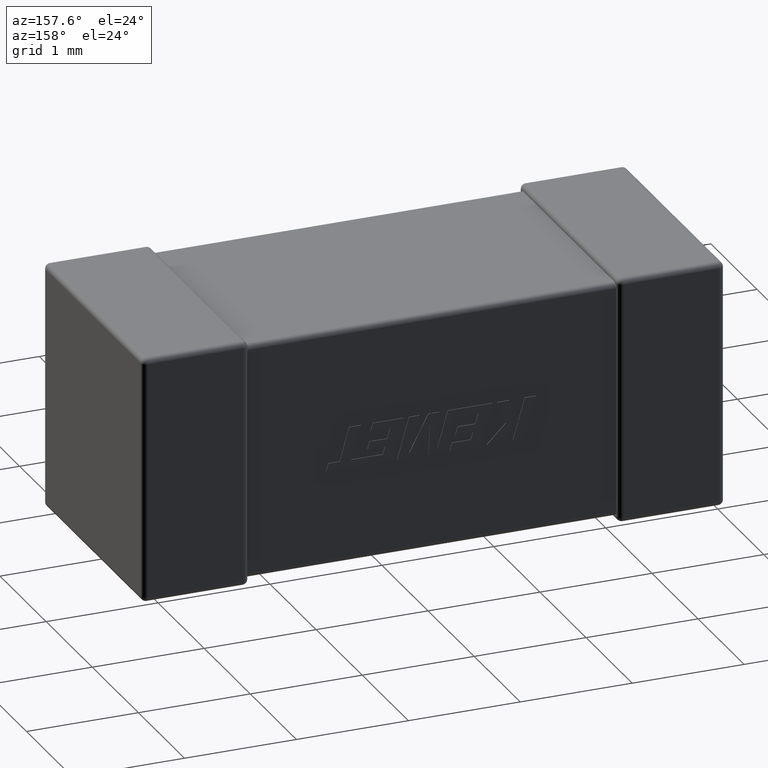
[diagram: clean part render]
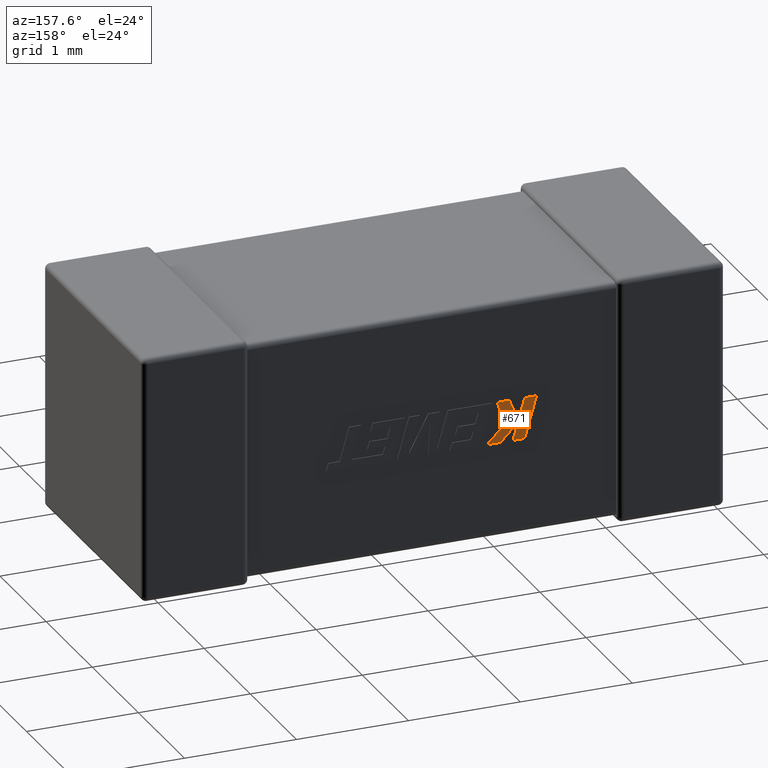
[diagram: same view with one face highlighted and labeled with its STEP entity id]
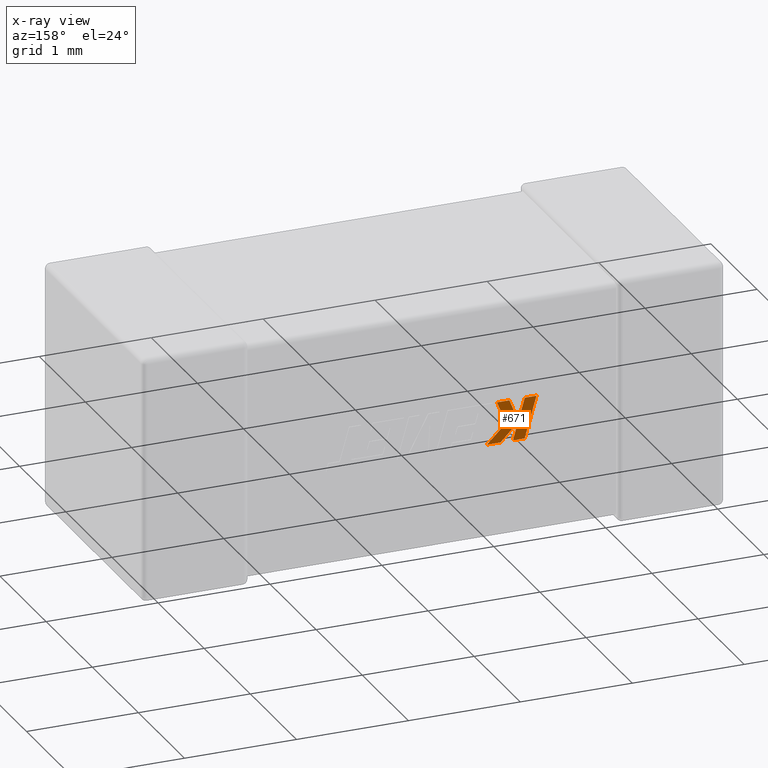
[diagram: x-ray of the same camera — body ghosted, the highlighted face saturated]
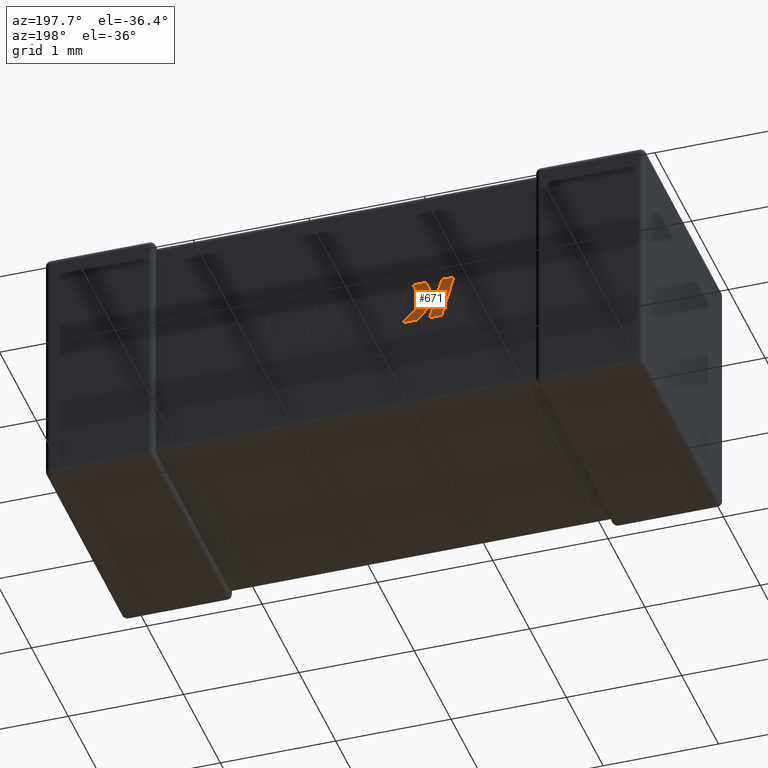
[diagram: same view with one face highlighted and labeled with its STEP entity id]
A machine part, auxiliary view. The second image highlights one B-rep face of the part: STEP entity #671.
The next image is the same camera in x-ray: the body ghosted, the highlighted face saturated — about 0% of this face is hidden behind the body in this view.
A second angle (auxiliary view) of the same face is appended — the face is thin or edge-on in the first view.
In plain terms, the highlighted planar face has unit normal (0, -1, 0).
Its self-contained STEP definition (entity closure, byte-faithful):
#7 = LINE ( 'NONE', #2825, #3918 ) ;
#23 = VERTEX_POINT ( 'NONE', #1917 ) ;
#108 = ORIENTED_EDGE ( 'NONE', *, *, #1119, .T. ) ;
#135 = EDGE_CURVE ( 'NONE', #2119, #23, #4015, .T. ) ;
#159 = EDGE_CURVE ( 'NONE', #1093, #2119, #4065, .T. ) ;
#169 = VECTOR ( 'NONE', #1275, 1000.000000000000200 ) ;
#186 = CARTESIAN_POINT ( 'NONE',  ( 1.874532194122014100, 2.109239999999999300, -1.307607973295141300 ) ) ;
#197 = EDGE_CURVE ( 'NONE', #500, #2901, #3834, .T. ) ;
#204 = VECTOR ( 'NONE', #2689, 1000.000000000000000 ) ;
#222 = LINE ( 'NONE', #2448, #3291 ) ;
#320 = CARTESIAN_POINT ( 'NONE',  ( 1.985941643410828800, 2.109239999999999300, -1.307607973295141300 ) ) ;
#415 = CARTESIAN_POINT ( 'NONE',  ( 1.829549943640980600, 2.109239999999999300, -1.150683674372783700 ) ) ;
#500 = VERTEX_POINT ( 'NONE', #415 ) ;
#530 = VECTOR ( 'NONE', #4357, 1000.000000000000000 ) ;
#587 = DIRECTION ( 'NONE',  ( -0.3829140317376896200, 0.0000000000000000000, -0.9237839814038711900 ) ) ;
#628 = DIRECTION ( 'NONE',  ( 0.7145695586381790600, 0.0000000000000000000, -0.6995643972270444400 ) ) ;
#671 = ADVANCED_FACE ( 'NONE', ( #3695 ), #4419, .F. ) ;
#740 = CARTESIAN_POINT ( 'NONE',  ( 1.769753380531572600, 2.109239999999999300, -1.307607973295141300 ) ) ;
#810 = LINE ( 'NONE', #4670, #1198 ) ;
#961 = CARTESIAN_POINT ( 'NONE',  ( 2.018076617340267100, 2.109239999999999300, -0.9396200000000000100 ) ) ;
#1034 = EDGE_CURVE ( 'NONE', #2901, #3184, #7, .T. ) ;
#1093 = VERTEX_POINT ( 'NONE', #2447 ) ;
#1118 = CARTESIAN_POINT ( 'NONE',  ( 1.825907905007221800, 2.109239999999999300, -1.139427482146188500 ) ) ;
#1119 = EDGE_CURVE ( 'NONE', #3184, #4185, #810, .T. ) ;
#1139 = CARTESIAN_POINT ( 'NONE',  ( 2.018076617340267100, 2.109239999999999300, -0.9396200000000000100 ) ) ;
#1152 = ORIENTED_EDGE ( 'NONE', *, *, #4600, .T. ) ;
#1198 = VECTOR ( 'NONE', #3284, 1000.000000000000000 ) ;
#1243 = VERTEX_POINT ( 'NONE', #3857 ) ;
#1249 = VECTOR ( 'NONE', #628, 1000.000000000000000 ) ;
#1275 = DIRECTION ( 'NONE',  ( 0.3725077383644723200, 0.0000000000000000000, 0.9280290862136734200 ) ) ;
#1303 = EDGE_LOOP ( 'NONE', ( #108, #2809, #1152, #1364, #1877, #1889, #1964, #1906, #4567, #2294, #4098 ) ) ;
#1313 = EDGE_CURVE ( 'NONE', #23, #2871, #4456, .T. ) ;
#1364 = ORIENTED_EDGE ( 'NONE', *, *, #3666, .T. ) ;
#1400 = VECTOR ( 'NONE', #4540, 1000.000000000000000 ) ;
#1408 = EDGE_CURVE ( 'NONE', #1490, #500, #2629, .T. ) ;
#1490 = VERTEX_POINT ( 'NONE', #320 ) ;
#1634 = VERTEX_POINT ( 'NONE', #1118 ) ;
#1686 = CARTESIAN_POINT ( 'NONE',  ( 1.935255210929122100, 2.109239999999999300, -1.139427482146195200 ) ) ;
#1730 = CARTESIAN_POINT ( 'NONE',  ( 2.107043054633311200, 2.109239999999999300, -1.307607973295141300 ) ) ;
#1828 = DIRECTION ( 'NONE',  ( -0.7059037656364479700, 0.0000000000000000000, 0.7083077534943993400 ) ) ;
#1870 = CARTESIAN_POINT ( 'NONE',  ( 1.663999999999999500, 2.109239999999999300, -0.9396200000000000100 ) ) ;
#1877 = ORIENTED_EDGE ( 'NONE', *, *, #159, .T. ) ;
#1889 = ORIENTED_EDGE ( 'NONE', *, *, #135, .T. ) ;
#1906 = ORIENTED_EDGE ( 'NONE', *, *, #3416, .T. ) ;
#1917 = CARTESIAN_POINT ( 'NONE',  ( 1.935255210929122100, 2.109239999999999300, -1.139427482146195200 ) ) ;
#1964 = ORIENTED_EDGE ( 'NONE', *, *, #1313, .T. ) ;
#2113 = DIRECTION ( 'NONE',  ( -1.000000000000000000, 0.0000000000000000000, 0.0000000000000000000 ) ) ;
#2119 = VERTEX_POINT ( 'NONE', #1139 ) ;
#2227 = DIRECTION ( 'NONE',  ( 0.0000000000000000000, -1.000000000000000000, 0.0000000000000000000 ) ) ;
#2291 = DIRECTION ( 'NONE',  ( 0.0000000000000000000, 0.0000000000000000000, -1.000000000000000000 ) ) ;
#2294 = ORIENTED_EDGE ( 'NONE', *, *, #197, .T. ) ;
#2430 = LINE ( 'NONE', #4002, #530 ) ;
#2431 = DIRECTION ( 'NONE',  ( -1.000000000000000000, 0.0000000000000000000, 0.0000000000000000000 ) ) ;
#2447 = CARTESIAN_POINT ( 'NONE',  ( 1.906109952969153000, 2.109239999999999300, -0.9396200000000000100 ) ) ;
#2448 = CARTESIAN_POINT ( 'NONE',  ( 1.825907905007221800, 2.109239999999999300, -1.139427482146188500 ) ) ;
#2629 = LINE ( 'NONE', #2911, #4230 ) ;
#2689 = DIRECTION ( 'NONE',  ( 0.2755520632520533900, 0.0000000000000000000, -0.9612861490927331300 ) ) ;
#2724 = CARTESIAN_POINT ( 'NONE',  ( 2.107043054633311200, 2.109239999999999300, -1.307607973295141300 ) ) ;
#2809 = ORIENTED_EDGE ( 'NONE', *, *, #3059, .T. ) ;
#2825 = CARTESIAN_POINT ( 'NONE',  ( 1.769753380531572600, 2.109239999999999300, -1.307607973295141300 ) ) ;
#2871 = VERTEX_POINT ( 'NONE', #2724 ) ;
#2901 = VERTEX_POINT ( 'NONE', #4446 ) ;
#2911 = CARTESIAN_POINT ( 'NONE',  ( 1.829549943640980600, 2.109239999999999300, -1.150683674372783700 ) ) ;
#2989 = CARTESIAN_POINT ( 'NONE',  ( -0.0003453183671814786400, 2.109239999999998400, 0.2978833907669357100 ) ) ;
#3027 = VECTOR ( 'NONE', #587, 999.9999999999998900 ) ;
#3046 = LINE ( 'NONE', #3083, #169 ) ;
#3059 = EDGE_CURVE ( 'NONE', #4185, #1243, #2430, .T. ) ;
#3083 = CARTESIAN_POINT ( 'NONE',  ( 1.906109952969153000, 2.109239999999999300, -0.9396200000000000100 ) ) ;
#3136 = AXIS2_PLACEMENT_3D ( 'NONE', #2989, #2227, #2291 ) ;
#3182 = VECTOR ( 'NONE', #2431, 1000.000000000000000 ) ;
#3184 = VERTEX_POINT ( 'NONE', #740 ) ;
#3284 = DIRECTION ( 'NONE',  ( -0.2762033010252067400, 0.0000000000000000000, 0.9610992334315843200 ) ) ;
#3291 = VECTOR ( 'NONE', #4638, 1000.000000000000100 ) ;
#3416 = EDGE_CURVE ( 'NONE', #2871, #1490, #3928, .T. ) ;
#3666 = EDGE_CURVE ( 'NONE', #1634, #1093, #3046, .T. ) ;
#3695 = FACE_OUTER_BOUND ( 'NONE', #1303, .T. ) ;
#3696 = CARTESIAN_POINT ( 'NONE',  ( 1.985941643410828800, 2.109239999999999300, -1.307607973295141300 ) ) ;
#3834 = LINE ( 'NONE', #186, #204 ) ;
#3857 = CARTESIAN_POINT ( 'NONE',  ( 1.768638950071499800, 2.109239999999999300, -0.9396199999999997900 ) ) ;
#3918 = VECTOR ( 'NONE', #2113, 1000.000000000000000 ) ;
#3928 = LINE ( 'NONE', #3696, #3182 ) ;
#4002 = CARTESIAN_POINT ( 'NONE',  ( 1.768638950071499800, 2.109239999999999300, -0.9396199999999997900 ) ) ;
#4015 = LINE ( 'NONE', #1686, #3027 ) ;
#4065 = LINE ( 'NONE', #961, #1400 ) ;
#4098 = ORIENTED_EDGE ( 'NONE', *, *, #1034, .T. ) ;
#4185 = VERTEX_POINT ( 'NONE', #1870 ) ;
#4230 = VECTOR ( 'NONE', #1828, 1000.000000000000000 ) ;
#4357 = DIRECTION ( 'NONE',  ( 1.000000000000000000, 0.0000000000000000000, 1.539402763017534600E-015 ) ) ;
#4419 = PLANE ( 'NONE',  #3136 ) ;
#4446 = CARTESIAN_POINT ( 'NONE',  ( 1.874532194122014100, 2.109239999999999300, -1.307607973295141300 ) ) ;
#4456 = LINE ( 'NONE', #1730, #1249 ) ;
#4540 = DIRECTION ( 'NONE',  ( 1.000000000000000000, 0.0000000000000000000, 0.0000000000000000000 ) ) ;
#4567 = ORIENTED_EDGE ( 'NONE', *, *, #1408, .T. ) ;
#4600 = EDGE_CURVE ( 'NONE', #1243, #1634, #222, .T. ) ;
#4638 = DIRECTION ( 'NONE',  ( 0.2755265765475200000, 0.0000000000000000000, -0.9612934544747527800 ) ) ;
#4670 = CARTESIAN_POINT ( 'NONE',  ( 1.663999999999999500, 2.109239999999999300, -0.9396200000000000100 ) ) ;